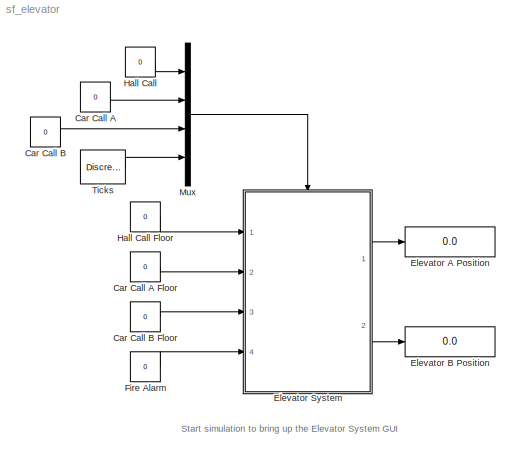
MODEL sf_elevator
KIND model
CONFIG StopFcn = sf_elevator_gui('close');
BLOCK [Constant] Car Call A
  Value = 0
BLOCK [Constant] Car Call A Floor
  Value = 0
BLOCK [Constant] Car Call B
  Value = 0
BLOCK [Constant] Car Call B Floor
  Value = 0
BLOCK [Display] Elevator A Position
  Decimation = 1
  Ports = [1]
BLOCK [Display] Elevator B Position
  Decimation = 1
  Ports = [1]
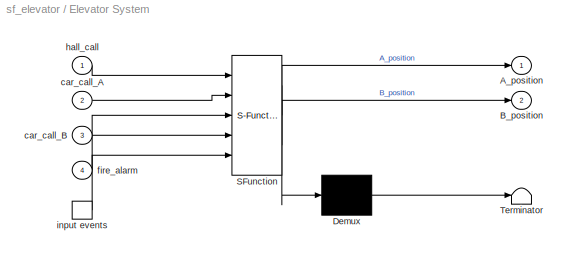
BLOCK [SubSystem] Elevator System
  MaskDescription = Stateflow diagram
  MaskDisplay = plot(sf('Private','sfblk','xIcon'),sf('Private','sfblk','yIcon'));text(0.5,0,sf('Private', 'sfblk', 'tIcon'),'HorizontalAl','Center','VerticalAl','Bottom');
  MaskIconFrame = off
  MaskIconOpaque = off
  MaskIconRotate = none
  MaskIconUnits = autoscale
  MaskSelfModifiable = on
  MaskType = Stateflow
  MinAlgLoopOccurrences = off
  Ports = [4, 2, 0, 1]
  PropExecContextAcrossSSBoundary = on
  RTWSystemCode = Auto
  TreatAsAtomicUnit = off
BLOCK [Demux] Elevator System/ Demux 
  Outputs = 1
  Ports = [1, 1]
BLOCK [S-Function] Elevator System/ SFunction 
  FunctionName = sf_sfun
  PortCounts = [5 3]
  Ports = [5, 3]
  Tag = Stateflow S-Function sf_elevator 1
BLOCK [Terminator] Elevator System/ Terminator 
BLOCK [TriggerPort] Elevator System/ input events 
  Ports = [0, 1]
  ShowOutputPort = on
  TriggerType = either
BLOCK [Outport] Elevator System/A_position
  IconDisplay = Port number
BLOCK [Outport] Elevator System/B_position
  IconDisplay = Port number
  Port = 2
BLOCK [Inport] Elevator System/car_call_A
  IconDisplay = Port number
  LatchInput = off
  Port = 2
BLOCK [Inport] Elevator System/car_call_B
  IconDisplay = Port number
  LatchInput = off
  Port = 3
BLOCK [Inport] Elevator System/fire_alarm
  IconDisplay = Port number
  LatchInput = off
  Port = 4
BLOCK [Inport] Elevator System/hall_call
  IconDisplay = Port number
  LatchInput = off
  Port = 1
BLOCK [Constant] Fire Alarm
  Value = 0
BLOCK [Constant] Hall Call
  Value = 0
BLOCK [Constant] Hall Call Floor
  Value = 0
BLOCK [Mux] Mux
  DisplayOption = bar
  Ports = [4, 1]
BLOCK [DiscretePulseGenerator] Ticks
  Ports = [0, 1]
  PulseType = Time based
  PulseWidth = 50
ANNOTATION (root): Start simulation to bring up the Elevator System GUI
LINE Car Call A Floor:1 -> Elevator System:2
LINE Car Call A:1 -> Mux:2
LINE Car Call B Floor:1 -> Elevator System:3
LINE Car Call B:1 -> Mux:3
LINE Elevator System/ Demux :1 -> Elevator System/ Terminator :1
LINE Elevator System/ SFunction :1 -> Elevator System/ Demux :1
LINE Elevator System/ SFunction :2 -> Elevator System/A_position:1
LINE Elevator System/ SFunction :3 -> Elevator System/B_position:1
LINE Elevator System/ input events :1 -> Elevator System/ SFunction :5
LINE Elevator System/car_call_A:1 -> Elevator System/ SFunction :2
LINE Elevator System/car_call_B:1 -> Elevator System/ SFunction :3
LINE Elevator System/fire_alarm:1 -> Elevator System/ SFunction :4
LINE Elevator System/hall_call:1 -> Elevator System/ SFunction :1
LINE Elevator System:1 -> Elevator A Position:1
LINE Elevator System:2 -> Elevator B Position:1
LINE Fire Alarm:1 -> Elevator System:4
LINE Hall Call Floor:1 -> Elevator System:1
LINE Hall Call:1 -> Mux:1
LINE Mux:1 -> Elevator System:trigger
LINE Ticks:1 -> Mux:4
CHART Elevator System states=35 transitions=170
  STATE_LABEL 'process_hall_call()'
  STATE_LABEL 'Elevator_Manager\\n\\nen: ml.sf_elevator_gui(\\"init\\");\\ndu: process_hall_call();\\n      A_position = Elevator_A.get_position();\\n      B_position = Elevator_B.get_position();'
  STATE_LABEL 'Elevator_A'
  STATE_LABEL 'stat = get_status()'
  STATE_LABEL 'pos = get_position()'
  STATE_LABEL 'register(car_call_floor)'
  STATE_LABEL 'deregister(hall_call_floor)'
  STATE_LABEL 'deregister(car_call_floor)'
  STATE_LABEL 'Idle\\nen: status = IDLE;\\nex: status = BUSY;'
  STATE_LABEL 'dequeue(task_floor)'
  STATE_LABEL 'MoveToTask\\ndu: move_to(task_queue[0]);'
  STATE_LABEL 'enqueue(hall_call_floor)'
  STATE_LABEL 'PickUpDropOff\\nen: Elevator_Manager.deregister(cur_floor);\\n      deregister(cur_floor);\\n      direction = MOVE_IDLE;\\n      ml.sf_elevator_gui(\\"open_door\\",\\"carA\\");\\ndu: Elevator_Manager.deregister(cur_floor);\\n      deregister(cur_floor);\\nex: ml.sf_elevator_gui(\\"close_door\\",\\"carA\\");'
  STATE_LABEL 'move_to(destination)'
  STATE_LABEL 'dequeue(hall_call_floor)'
  STATE_LABEL 'enqueue(task_floor)'
  STATE_LABEL 'register(hall_call_floor)'
  STATE_LABEL 'Stopped'
  STATE_LABEL 'ans = should_stop()'
  STATE_LABEL 'dir = get_direction()'
  STATE_LABEL 'ans = exists_in_queue(floor)'
  STATE_LABEL 'Elevator_B'
  STATE_LABEL 'PickUpDropOff\\nen: Elevator_Manager.deregister(cur_floor);\\n      deregister(cur_floor);\\n      direction = MOVE_IDLE;\\n      ml.sf_elevator_gui(\\"open_door\\",\\"carB\\");\\ndu: Elevator_Manager.deregister(cur_floor);\\n      deregister(cur_floor);\\nex: ml.sf_elevator_gui(\\"close_door\\",\\"carB\\");'
  STATE_LABEL 'Stopped'
  STATE_LABEL 'Idle\\nen: status = IDLE;\\nex: status = BUSY;'
  STATE_LABEL 'MoveToTask\\ndu: move_to(task_queue[0]);'
  STATE_LABEL 'move_to(destination)'
  STATE_LABEL 'ans = should_stop()'
  STATE_LABEL 'dir = get_direction()'
  STATE_LABEL 'register(car_call_floor)'
  STATE_LABEL 'enqueue(task_floor)'
  STATE_LABEL 'pos = get_position()'
  STATE_LABEL 'deregister(car_call_floor)'
  STATE_LABEL 'stat = get_status()'
  STATE_LABEL 'dequeue(task_floor)'
